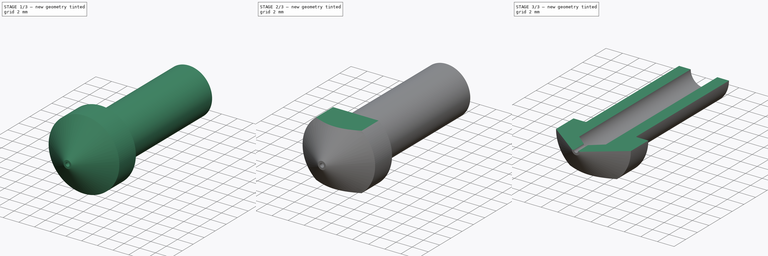
[diagram: build sequence overview — one tinted view per stage of 3, left to right]
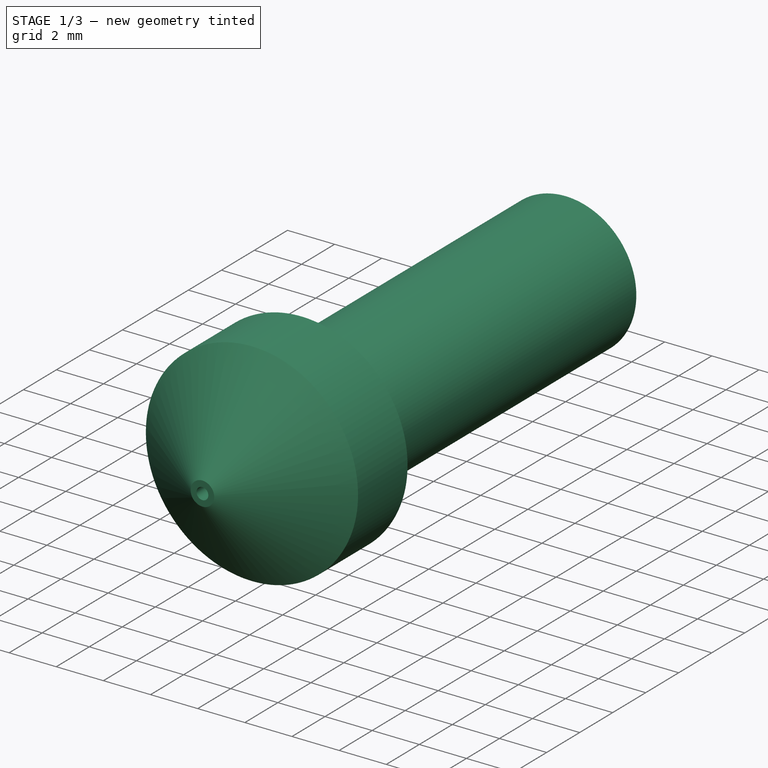
[diagram: stage 1 of 3 — iso view after this stage's code; geometry added in this stage tinted green]
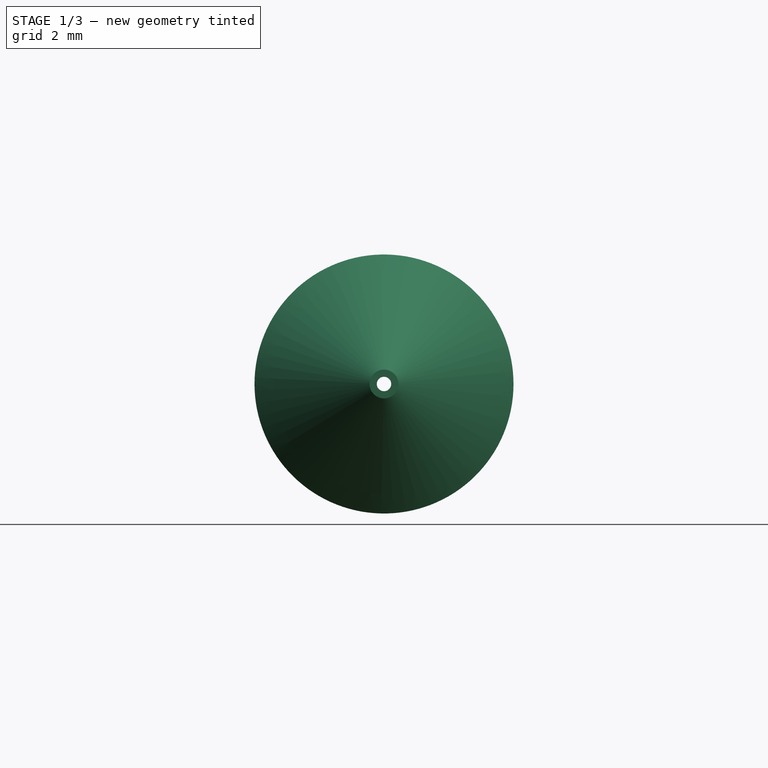
[diagram: stage 1 of 3 — front view after this stage's code; geometry added in this stage tinted green]
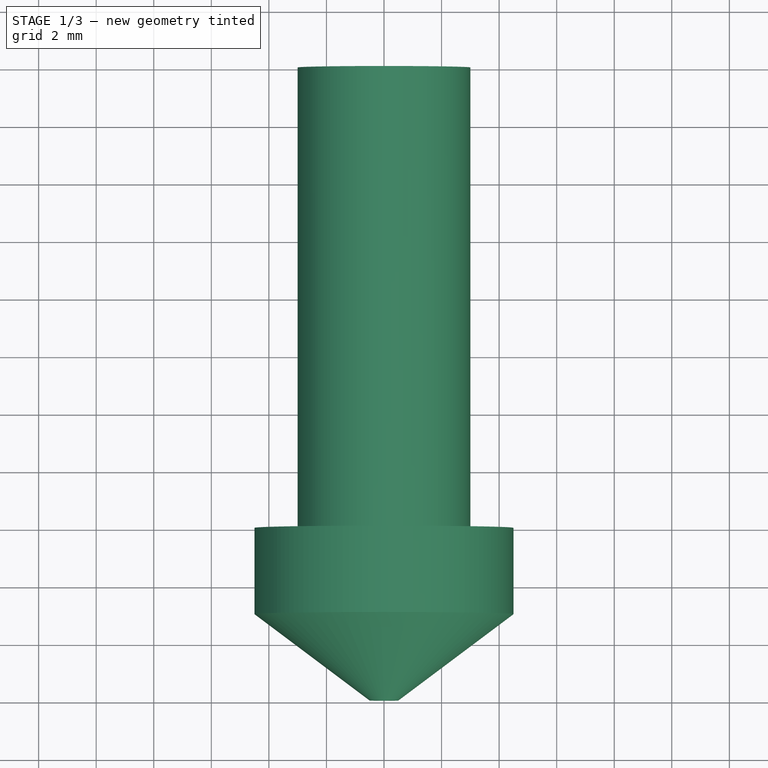
[diagram: stage 1 of 3 — top view after this stage's code; geometry added in this stage tinted green]
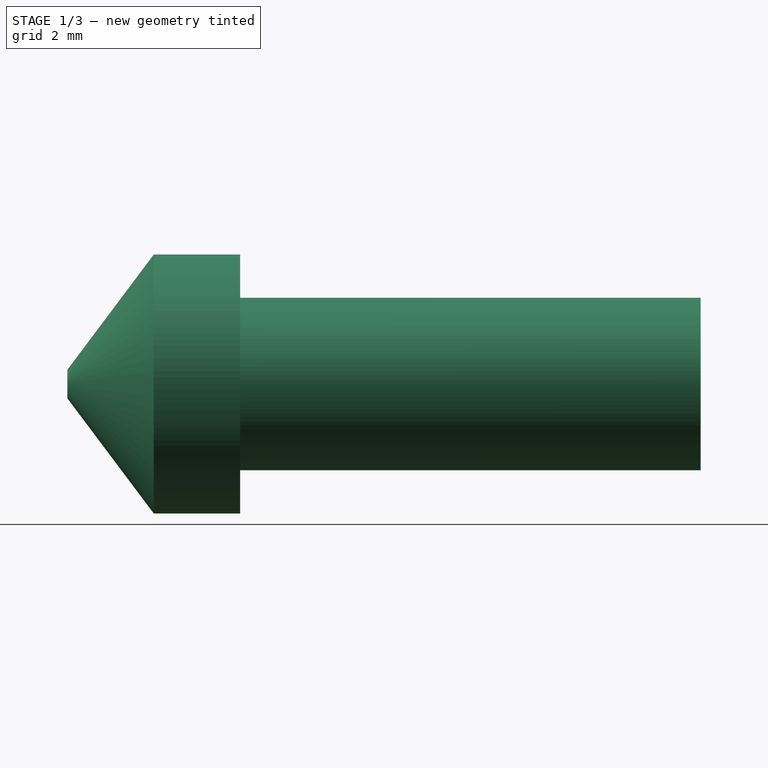
[diagram: stage 1 of 3 — right view after this stage's code; geometry added in this stage tinted green]
FCSTD DOCUMENT  (FreeCAD 0.15R4651 (Git))
Label: extended_hex_nozzle_0.1_drawing
License: All rights reserved
LicenseURL: http://en.wikipedia.org/wiki/All_rights_reserved
objects: Drawing::FeatureView×13, Sketcher::SketchObject×4, PartDesign::Pocket×3, Drawing::FeatureViewPart×3, PartDesign::Revolution×1, PartDesign::Fillet×1, Drawing::FeaturePage×1
note: 13 computed .brp shape members not serialized (recipe doc carries the construction recipe); baked Part::Feature solids carry a one-line shape summary decoded from their .brp

FEATURE [Sketcher::SketchObject] Sketch
  sketch-geometry (9):
    g0: LineSegment StartX=0 StartY=0 StartZ=0 EndX=0.5 EndY=0 EndZ=0
    g1: LineSegment StartX=0.5 StartY=0 StartZ=0 EndX=4.5 EndY=3 EndZ=0
    g2: LineSegment StartX=4.5 StartY=3 StartZ=0 EndX=4.5 EndY=6 EndZ=0
    g3: LineSegment StartX=4.5 StartY=6 StartZ=0 EndX=3 EndY=6 EndZ=0
    g4: LineSegment StartX=3 StartY=6 StartZ=0 EndX=3 EndY=22 EndZ=0
    g5: LineSegment StartX=3 StartY=22 StartZ=0 EndX=1.6 EndY=22 EndZ=0
    g6: LineSegment StartX=1.6 StartY=22 StartZ=0 EndX=1.6 EndY=2.84256 EndZ=0
    g7: LineSegment StartX=1.6 StartY=2.84256 StartZ=0 EndX=0 EndY=1.5 EndZ=0
    g8: LineSegment StartX=0 StartY=1.5 StartZ=0 EndX=0 EndY=0 EndZ=0
  constraints (26):
    c: Coincident(g-1,g0)
    c: PointOnObject(g0,g-1)
    c: Coincident(g0,g1)
    c: Coincident(g1,g2)
    c: Vertical(g2)
    c: Coincident(g2,g3)
    c: Horizontal(g3)
    c: Coincident(g3,g4)
    c: Vertical(g4)
    c: Coincident(g4,g5)
    c: Horizontal(g5)
    c: Coincident(g5,g6)
    c: Vertical(g6)
    c: Coincident(g6,g7)
    c: Coincident(g7,g8)
    c: Coincident(g8,g0)
    c: Vertical(g8)
    c: DistanceY(g0,g1) = 3
    c: DistanceY(g2,g1) = -3
    c: DistanceY(g-1,g4) = 22
    c: Angle(g0,g7) = 0.698132
    c: DistanceY(g-1,g7) = 1.5
    c: DistanceX(g0) = 0.5
    c: DistanceX(g-1,g1) = 4.5
    c: DistanceX(g-1,g4) = 3
    c: DistanceX(g-1,g5) = 1.6
FEATURE [PartDesign::Revolution] Revolution
  Angle = 360
  Axis = (0,1,0)
  Base = (0,0,0)
  ReferenceAxis = -> Sketch [V_Axis]
  Reversed = true
  Sketch = -> Sketch
FEATURE [Sketcher::SketchObject] Sketch001
  Placement = pos=(0,0,0) rot=(1,0,0;1.5708rad)
  Support = -> Revolution [Face1]
  sketch-geometry (1):
    g0: Circle CenterX=0 CenterY=0 CenterZ=0 NormalX=0 NormalY=0 NormalZ=1 Radius=0.25
  constraints (2):
    c: Coincident(g0,g-1)
    c: Radius(g0) = 0.25
FEATURE [PartDesign::Pocket] Pocket
  Length = 5
  Sketch = -> Sketch001
  Type = 0
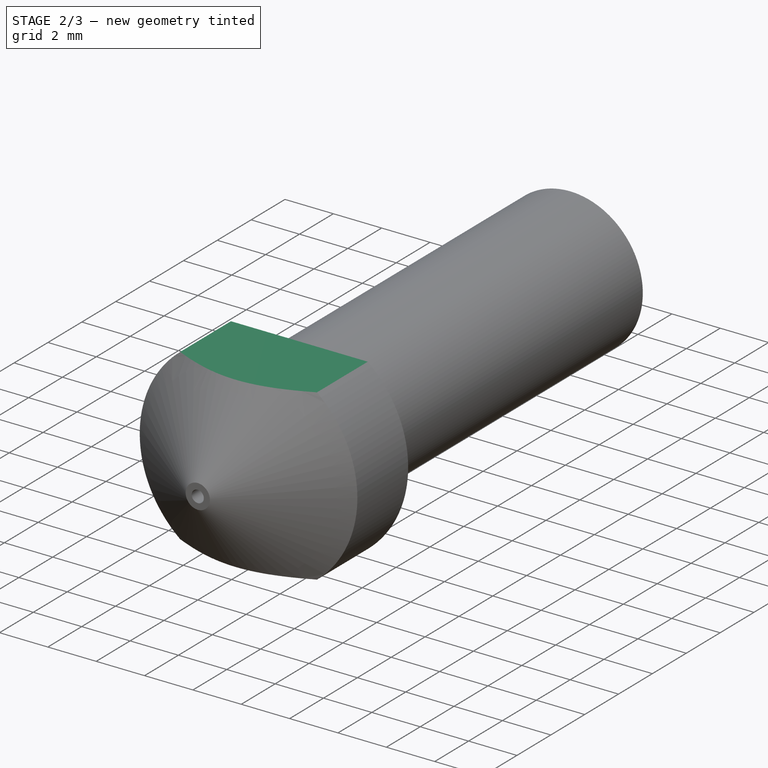
[diagram: stage 2 of 3 — iso view after this stage's code; geometry added in this stage tinted green]
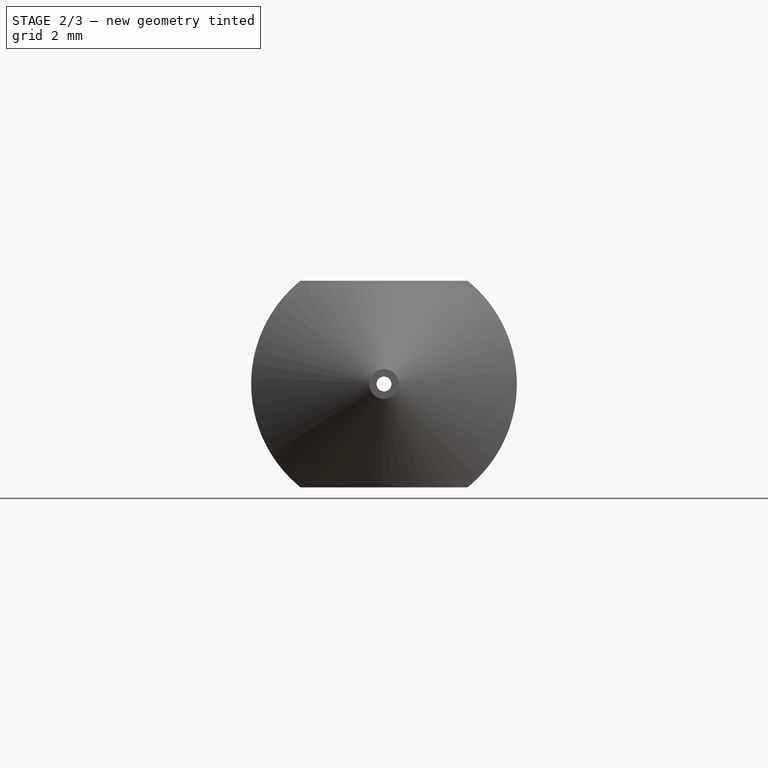
[diagram: stage 2 of 3 — front view after this stage's code; geometry added in this stage tinted green]
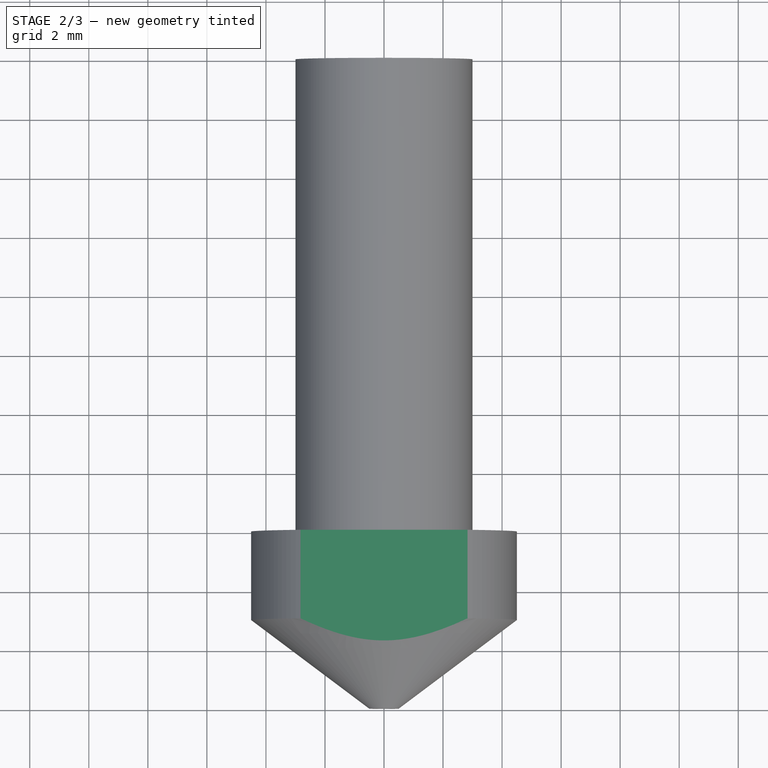
[diagram: stage 2 of 3 — top view after this stage's code; geometry added in this stage tinted green]
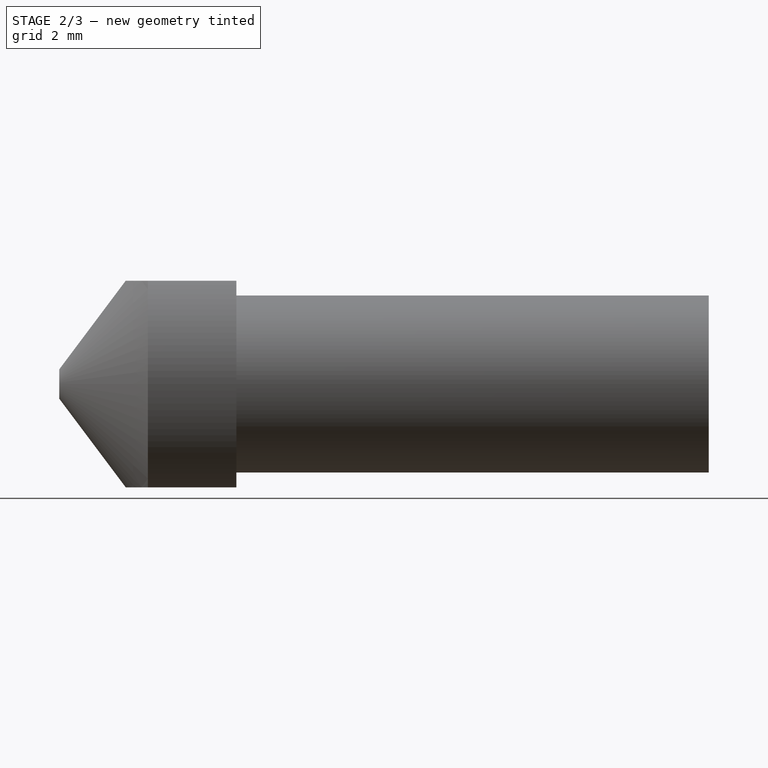
[diagram: stage 2 of 3 — right view after this stage's code; geometry added in this stage tinted green]
FEATURE [Sketcher::SketchObject] Sketch002
  Placement = pos=(0,0,0) rot=(1,0,0;1.5708rad)
  Support = -> Pocket [Face1]
  sketch-geometry (8):
    g0: LineSegment StartX=-5.41894 StartY=5.5961 StartZ=0 EndX=4.58106 EndY=5.5961 EndZ=0
    g1: LineSegment StartX=4.58106 StartY=5.5961 StartZ=0 EndX=4.58106 EndY=3.5 EndZ=0
    g2: LineSegment StartX=4.58106 StartY=3.5 StartZ=0 EndX=-5.41894 EndY=3.5 EndZ=0
    g3: LineSegment StartX=-5.41894 StartY=3.5 StartZ=0 EndX=-5.41894 EndY=5.5961 EndZ=0
    g4: LineSegment StartX=-5.45643 StartY=-5.80451 StartZ=0 EndX=4.54357 EndY=-5.80451 EndZ=0
    g5: LineSegment StartX=4.54357 StartY=-5.80451 StartZ=0 EndX=4.54357 EndY=-3.5 EndZ=0
    g6: LineSegment StartX=4.54357 StartY=-3.5 StartZ=0 EndX=-5.45643 EndY=-3.5 EndZ=0
    g7: LineSegment StartX=-5.45643 StartY=-3.5 StartZ=0 EndX=-5.45643 EndY=-5.80451 EndZ=0
  constraints (24):
    c: Coincident(g0,g1)
    c: Coincident(g1,g2)
    c: Coincident(g2,g3)
    c: Coincident(g3,g0)
    c: Horizontal(g0)
    c: Horizontal(g2)
    c: Vertical(g1)
    c: Vertical(g3)
    c: Coincident(g4,g5)
    c: Coincident(g5,g6)
    c: Coincident(g6,g7)
    c: Coincident(g7,g4)
    c: Horizontal(g4)
    c: Horizontal(g6)
    c: Vertical(g5)
    c: Vertical(g7)
    c: DistanceY(g6,g2) = 7
    c: DistanceY(g-1,g2) = 3.5
    c: DistanceX(g4) = 4.54357
    c: DistanceY(g4) = -5.80451
    c: DistanceX(g0) = -5.41894
    c: DistanceY(g0) = 5.5961
    c: Equal(g0,g4)
    c: DistanceX(g0) = 10
FEATURE [PartDesign::Pocket] Pocket001
  Length = 5
  Sketch = -> Sketch002
  Type = 1
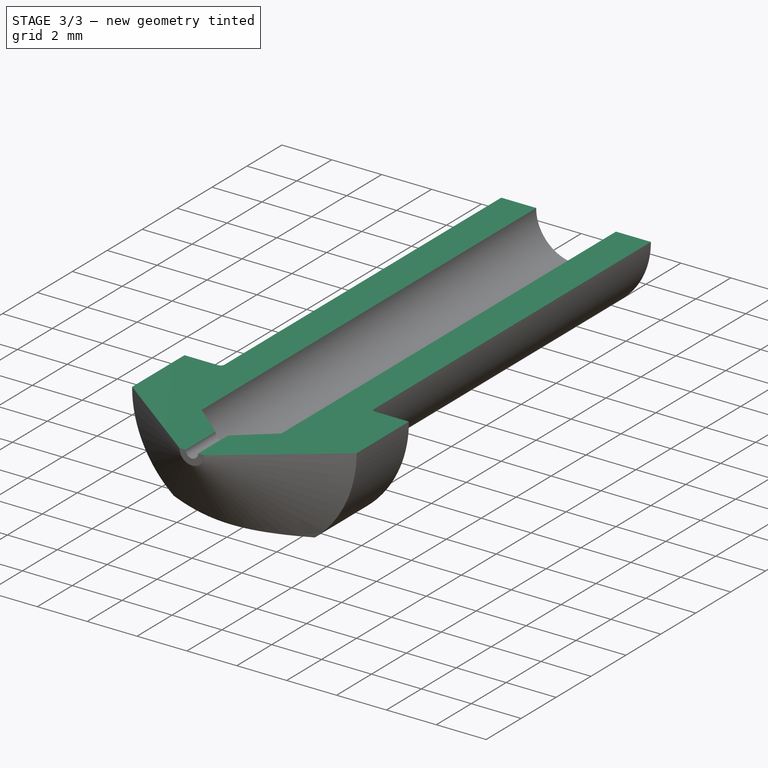
[diagram: stage 3 of 3 — iso view after this stage's code; geometry added in this stage tinted green]
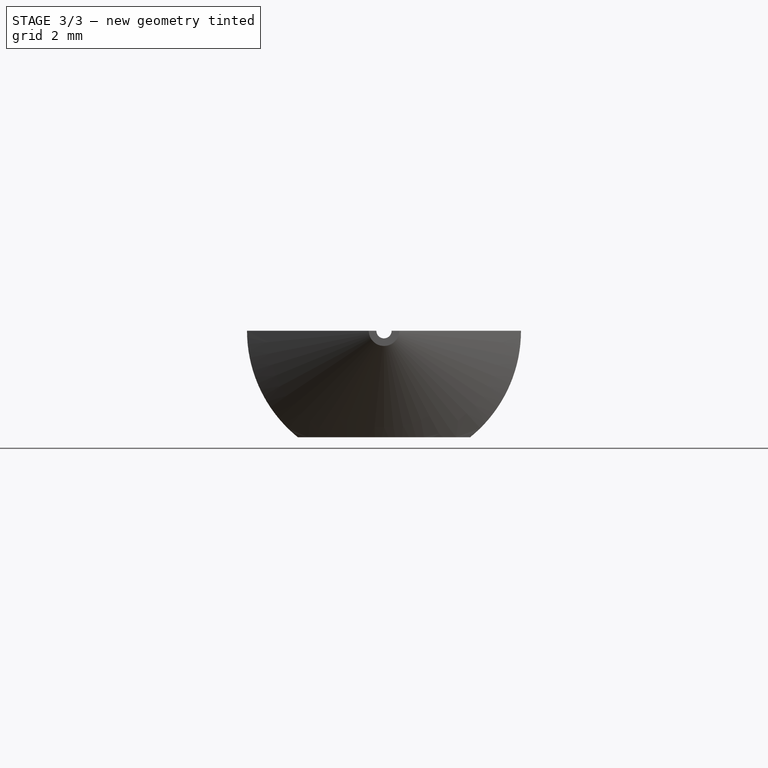
[diagram: stage 3 of 3 — front view after this stage's code; geometry added in this stage tinted green]
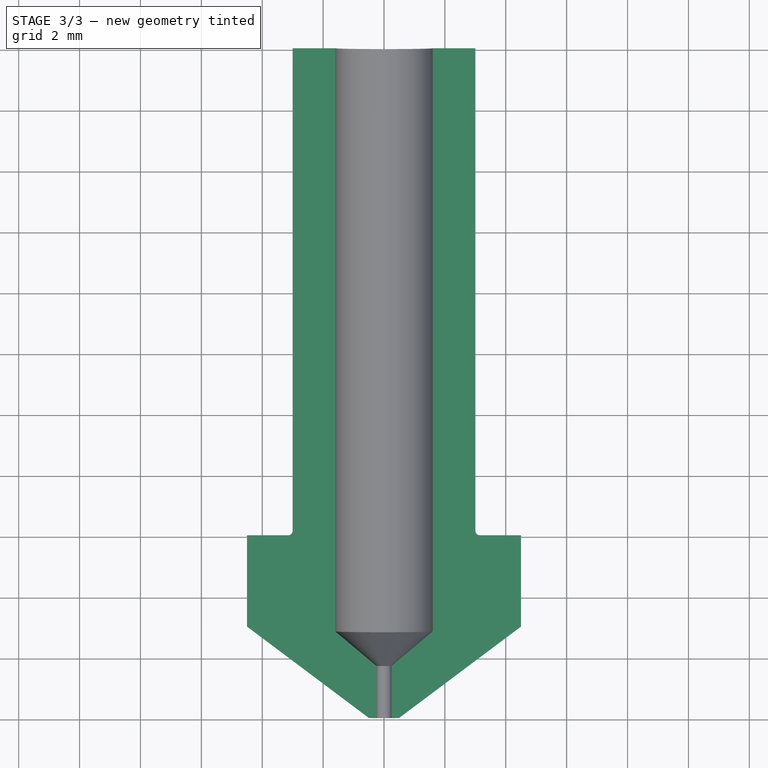
[diagram: stage 3 of 3 — top view after this stage's code; geometry added in this stage tinted green]
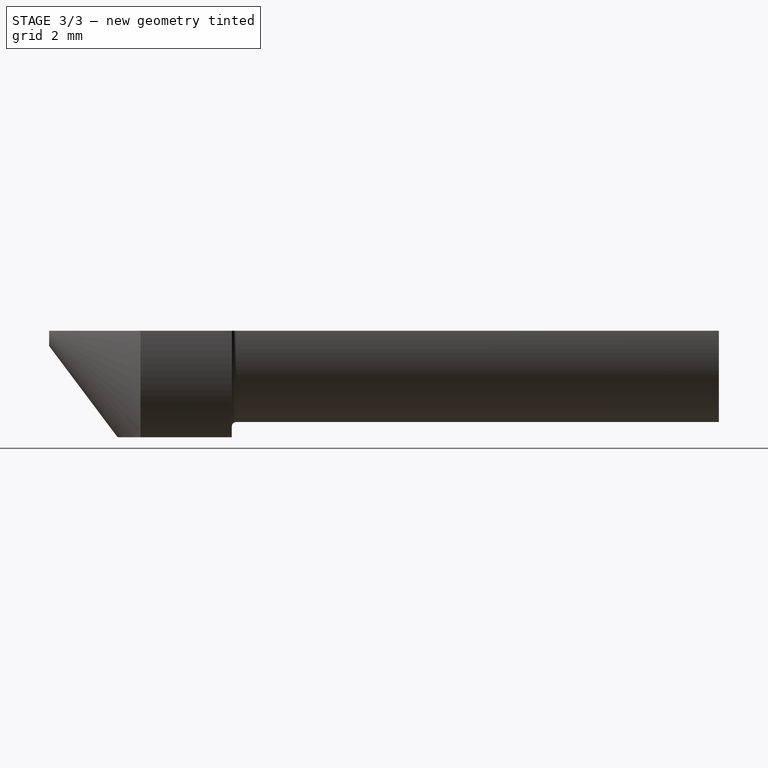
[diagram: stage 3 of 3 — right view after this stage's code; geometry added in this stage tinted green]
FEATURE [PartDesign::Fillet] Fillet
  Base = -> Pocket001 [Edge23]
  Radius = 0.15
FEATURE [Drawing::FeatureViewPart] Ortho  label="Ortho_0_0"
  Direction = (0,0,1)
  HiddenWidth = 0.15
  LineWidth = 0.35
  Rotation = 0
  Scale = 4
  ShowHiddenLines = true
  ShowSmoothLines = true
  Source = -> Fillet
  Tolerance = 0.05
  ViewResult = <blob: 8125 chars omitted>
  Visible = true
  X = 100
  Y = 119
FEATURE [Drawing::FeatureViewPart] Ortho001  label="Ortho_0_-1"
  Direction = (0,-1,0)
  HiddenWidth = 0.15
  LineWidth = 0.35
  Rotation = 90
  Scale = 4
  ShowHiddenLines = true
  ShowSmoothLines = true
  Source = -> Fillet
  Tolerance = 0.05
  ViewResult = <g id="Ortho_0_-1"\n   transform="rotate(90,100,150) translate(100,150) scale(4,4)"\n  >\n<g   stroke="rgb(0, 0, 0)"\n   stroke-width="0.0375"\n   stroke-linecap="butt"\n   stroke-linejoin="miter"\n   stroke-dasharray="0.2,0.1"\n   fill="none"\n   transform="scale(1,-1)"\n  >\n<path d="M3.5 2.82843 A4.5 4.5 0 0 1 1.10218e-15 4.5" /><path id= "2" d=" M 3.5 2.82843 L 3.5 -2.82843 " />\n<path d="M-3.5 -2.82843 A4.5 4.5 0 0 1 3.5 -2.82843" /><path id= "4" d=" M -3.5 2.82843 L -3.5 -2.82843 " />\n<path d="M0 4.5 A4.5 4.5 0 0 1 -3.5 2.82843" /><circle cx ="0" cy ="0" r ="3" /><circle cx ="0" cy ="0" r ="3" /><circle cx ="0" cy ="0" r ="1.6" /><circle cx ="0" cy ="0" r ="1.6" /><circle cx ="4.65794e-17" cy ="0" r ="0.25" /></g>\n<g   stroke="rgb(0, 0, 0)"\n   stroke-width="0.0875"\n   stroke-linecap="butt"\n   stroke-linejoin="miter"\n   fill="none"\n   transform="scale(1,-1)"\n  >\n<path d="M3.5 2.82843 A4.5 4.5 0 0 1 1.10218e-15 4.5" /><path d="M3.5,2.82843 L3.5,2.36825  L3.5,1.93449  L3.5,1.52232  L3.5,1.12712  L3.5,0.744501  L3.5,0.370186  L3.5,-4.85723e-16  L3.5,-0.370186  L3.5,-0.744501  L3.5,-1.12712  L3.5,-1.52232  L3.5,-1.93449  L3.5,-2.36825  L3.5,-2.82843 " /><path d="M-3.5 -2.82843 A4.5 4.5 0 0 1 3.5 -2.82843" /><path d="M-3.5,2.82843 L-3.5,2.36825  L-3.5,1.93449  L-3.5,1.52232  L-3.5,1.12712  L-3.5,0.744501  L-3.5,0.370186  L-3.5,9.71445e-17  L-3.5,-0.370186  L-3.5,-0.744501  L-3.5,-1.12712  L-3.5,-1.52232  L-3.5,-1.93449  L-3.5,-2.36825  L-3.5,-2.82843 " /><path d="M0 4.5 A4.5 4.5 0 0 1 -3.5 2.82843" /><circle cx ="0" cy ="0" r ="0.5" /><circle cx ="0" cy ="0" r ="0.25" /></g>\n<g   stroke="rgb(0, 0, 0)"\n   stroke-width="0.0375"\n   stroke-linecap="butt"\n   stroke-linejoin="miter"\n   stroke-dasharray="0.09,0.05"\n   fill="none"\n   transform="scale(1,-1)"\n  >\n<circle cx ="0" cy ="0" r ="3.15" /></g>\n</g>
  Visible = true
  X = 100
  Y = 150
FEATURE [Drawing::FeatureView] dim001
  Rotation = 0
  ViewResult = <g   >\n <circle cx ="112.600000" cy ="94.400000" r="0.500000" stroke="none" fill="rgb(0,0,255)" /> \n<line x1="125.411834" y1="83.116656" x2="112.600000" y2="94.400000" style="stroke:rgb(0,0,255);stroke-width:0.30" />\n<polygon points="113.050272,94.003446 115.962557,92.771133 116.052089,91.359756 114.640712,91.270224" style="fill:rgb(0,0,255);stroke:rgb(0,0,255);stroke-width:0" />\n<line x1="125.411834" y1="83.116656" x2="137.938280" y2="83.116656" style="stroke:rgb(0,0,255);stroke-width:0.30" />\n<text x="126.738163" y="81.642956" font-family="Verdana" font-size="3.6" fill="rgb(255,0,0)" text-anchor="inherit"  >R0.15</text>\n<!--0.6-->\n<!--R%3.3f-->\n</g> 
  Visible = true
  X = 0
  Y = 0
FEATURE [Drawing::FeatureView] dim003
  Rotation = 0
  ViewResult = <g   >\n<line x1="86.686280" y1="136.000000" x2="74.158678" y2="136.000000" style="stroke:rgb(0,0,255);stroke-width:0.30" />\n<line x1="86.686280" y1="164.000000" x2="74.158678" y2="164.000000" style="stroke:rgb(0,0,255);stroke-width:0.30" />\n<line x1="75.158678" y1="136.000000" x2="75.158678" y2="164.000000" style="stroke:rgb(0,0,255);stroke-width:0.30" />\n<polygon points="75.158678,136.000000 74.158678,139.000000 75.158678,140.000000 76.158678,139.000000" style="fill:rgb(0,0,255);stroke:rgb(0,0,255);stroke-width:0" /><polygon points="75.158678,164.000000 76.158678,161.000000 75.158678,160.000000 74.158678,161.000000" style="fill:rgb(0,0,255);stroke:rgb(0,0,255);stroke-width:0" />\n<text x="72.859707" y="151.908952" font-family="Verdana" font-size="3.6" fill="rgb(255,0,0)" text-anchor="inherit" transform="rotate(-90.000000 72.859707,151.908952)" >7</text>\n</g> 
  Visible = true
  X = 0
  Y = 0
FEATURE [Drawing::FeatureView] dim004
  Rotation = 0
  ViewResult = <g   >\n <circle cx ="99.999988" cy ="150.000000" r="0.500000" stroke="none" fill="rgb(0,0,255)" /> \n<line x1="119.900197" y1="166.233312" x2="99.999988" y2="150.000000" style="stroke:rgb(0,0,255);stroke-width:0.30" />\n<polygon points="113.947926,161.377831 112.255371,158.706641 110.848384,158.849424 110.991168,160.256411" style="fill:rgb(0,0,255);stroke:rgb(0,0,255);stroke-width:0" />\n<line x1="119.900197" y1="166.233312" x2="129.096083" y2="166.233312" style="stroke:rgb(0,0,255);stroke-width:0.30" />\n<text x="120.430729" y="165.172248" font-family="Verdana" font-size="3.6" fill="rgb(255,0,0)" text-anchor="inherit"  >R4.5</text>\n<!--18.0-->\n<!--R%3.3f-->\n</g> 
  Visible = true
  X = 0
  Y = 0
FEATURE [Drawing::FeatureView] dim005
  Rotation = 0
  ViewResult = <g   >\n<line x1="86.300880" y1="31.000000" x2="77.619186" y2="31.000000" style="stroke:rgb(0,0,255);stroke-width:0.30" />\n<line x1="83.524920" y1="95.000000" x2="77.619186" y2="95.000000" style="stroke:rgb(0,0,255);stroke-width:0.30" />\n<line x1="78.619186" y1="31.000000" x2="78.619186" y2="95.000000" style="stroke:rgb(0,0,255);stroke-width:0.30" />\n<polygon points="78.619186,31.000000 77.619186,34.000000 78.619186,35.000000 79.619186,34.000000" style="fill:rgb(0,0,255);stroke:rgb(0,0,255);stroke-width:0" /><polygon points="78.619186,95.000000 79.619186,92.000000 78.619186,91.000000 77.619186,92.000000" style="fill:rgb(0,0,255);stroke:rgb(0,0,255);stroke-width:0" />\n<text x="77.166265" y="68.448737" font-family="Verdana" font-size="3.6" fill="rgb(255,0,0)" text-anchor="inherit" transform="rotate(-90.000000 77.166265,68.448737)" >16</text>\n</g> 
  Visible = true
  X = 0
  Y = 0
FEATURE [Drawing::FeatureView] dim006
  Rotation = 0
  ViewResult = <g   >\n<line x1="80.000000" y1="107.000000" x2="77.619186" y2="107.000000" style="stroke:rgb(0,0,255);stroke-width:0.30" />\n<line x1="80.000000" y1="95.000000" x2="77.619186" y2="95.000000" style="stroke:rgb(0,0,255);stroke-width:0.30" />\n<line x1="78.619186" y1="107.000000" x2="78.619186" y2="95.000000" style="stroke:rgb(0,0,255);stroke-width:0.30" />\n<polygon points="78.619186,107.000000 79.619186,104.000000 78.619186,103.000000 77.619186,104.000000" style="fill:rgb(0,0,255);stroke:rgb(0,0,255);stroke-width:0" /><polygon points="78.619186,95.000000 77.619186,98.000000 78.619186,99.000000 79.619186,98.000000" style="fill:rgb(0,0,255);stroke:rgb(0,0,255);stroke-width:0" />\n<text x="77.812007" y="102.511669" font-family="Verdana" font-size="3.6" fill="rgb(255,0,0)" text-anchor="inherit" transform="rotate(-90.000000 77.812007,102.511669)" >3</text>\n</g> 
  Visible = true
  X = 0
  Y = 0
FEATURE [Drawing::FeatureView] dim007
  Rotation = 0
  ViewResult = <g   >\n<line x1="88.618040" y1="31.000000" x2="69.385965" y2="31.000000" style="stroke:rgb(0,0,255);stroke-width:0.30" />\n<line x1="97.000000" y1="119.000000" x2="69.385965" y2="119.000000" style="stroke:rgb(0,0,255);stroke-width:0.30" />\n<line x1="70.385965" y1="31.000000" x2="70.385965" y2="119.000000" style="stroke:rgb(0,0,255);stroke-width:0.30" />\n<polygon points="70.385965,31.000000 69.385965,34.000000 70.385965,35.000000 71.385965,34.000000" style="fill:rgb(0,0,255);stroke:rgb(0,0,255);stroke-width:0" /><polygon points="70.385965,119.000000 71.385965,116.000000 70.385965,115.000000 69.385965,116.000000" style="fill:rgb(0,0,255);stroke:rgb(0,0,255);stroke-width:0" />\n<text x="69.255915" y="82.816514" font-family="Verdana" font-size="3.6" fill="rgb(255,0,0)" text-anchor="inherit" transform="rotate(-90.000000 69.255915,82.816514)" >22</text>\n</g> 
  Visible = true
  X = 0
  Y = 0
FEATURE [Drawing::FeatureView] dimLine001
  Rotation = 0
  ViewResult = <g   >\n<line x1="121.076775" y1="54.888138" x2="112.000000" y2="62.700000" style="stroke:rgb(0,0,255);stroke-width:0.30" />\n<polygon points="112.000000,62.700000 114.926152,61.500986 115.031777,60.090723 113.621513,59.985098" style="fill:rgb(0,0,255);stroke:rgb(0,0,255);stroke-width:0" />\n<line x1="121.076775" y1="54.888138" x2="130.601481" y2="54.888138" style="stroke:rgb(0,0,255);stroke-width:0.30" />\n</g> 
  Visible = true
  X = 0
  Y = 0
FEATURE [Drawing::FeatureView] dimText001
  Rotation = 0
  ViewResult = <g   >\n<text x="124.144053" y="53.758088" font-family="Verdana" font-size="3.6" fill="rgb(255,0,0)" text-anchor="inherit"  >M6</text>\n</g> 
  Visible = true
  X = 0
  Y = 0
FEATURE [Sketcher::SketchObject] Sketch003
  Placement = pos=(0,22,0) rot=(0,0.707107,0.707107;3.14159rad)
  Support = -> Fillet [Face10]
  sketch-geometry (4):
    g0: LineSegment StartX=-10.3965 StartY=0 StartZ=0 EndX=8.66765 EndY=0 EndZ=0
    g1: LineSegment StartX=8.66765 StartY=0 StartZ=0 EndX=8.66765 EndY=4.78019 EndZ=0
    g2: LineSegment StartX=8.66765 StartY=4.78019 StartZ=0 EndX=-10.3965 EndY=4.78019 EndZ=0
    g3: LineSegment StartX=-10.3965 StartY=4.78019 StartZ=0 EndX=-10.3965 EndY=0 EndZ=0
  constraints (12):
    c: Coincident(g0,g1)
    c: Coincident(g1,g2)
    c: Coincident(g2,g3)
    c: Coincident(g3,g0)
    c: Horizontal(g0)
    c: Horizontal(g2)
    c: Vertical(g1)
    c: Vertical(g3)
    c: PointOnObject(g0,g-1)
    c: DistanceX(g2) = -10.3965
    c: DistanceY(g2) = 4.78019
    c: DistanceX(g2) = -19.0642
FEATURE [PartDesign::Pocket] Pocket002
  Length = 5
  Sketch = -> Sketch003
  Type = 1
FEATURE [Drawing::FeatureViewPart] View
  Direction = (0,0,1)
  HiddenWidth = 0.15
  LineWidth = 0.35
  Rotation = 0
  Scale = 4
  ShowHiddenLines = false
  ShowSmoothLines = false
  Source = -> Pocket002
  Tolerance = 0.05
  ViewResult = <blob: 2935 chars omitted>
  Visible = true
  X = 200
  Y = 120
FEATURE [Drawing::FeatureView] dim008
  Rotation = 0
  ViewResult = <g   >\n <line x1="199.000000" y1="122.000000" x2="199.000000" y2="128.752069" style="stroke:rgb(0,0,255);stroke-width:0.300000" />\n<line x1="201.000000" y1="122.000000" x2="201.000000" y2="128.752069" style="stroke:rgb(0,0,255);stroke-width:0.300000" />\n<line x1="199.000000" y1="127.752069" x2="201.000000" y2="127.752069" style="stroke:rgb(0,0,255);stroke-width:0.300000" />\n<polygon points="199.000000,127.752069 196.000000,126.752069 195.000000,127.752069 196.000000,128.752069" style="fill:rgb(0,0,255);stroke:rgb(0,0,255);stroke-width:0" />\n<polygon points="201.000000,127.752069 204.000000,128.752069 205.000000,127.752069 204.000000,126.752069" style="fill:rgb(0,0,255);stroke:rgb(0,0,255);stroke-width:0" />\n<text x="204.958765" y="131.537808" font-family="Verdana" font-size="3.6" fill="rgb(255,0,0)" text-anchor="inherit" transform="rotate(360.000000 204.958765,131.537808)" >0.5</text>\n</g> 
  Visible = true
  X = 0
  Y = 0
FEATURE [Drawing::FeatureView] dim002
  Rotation = 0
  ViewResult = <g   >\n<line x1="203.000000" y1="120.000000" x2="221.102603" y2="120.000000" style="stroke:rgb(0,0,255);stroke-width:0.30" />\n<line x1="203.000000" y1="113.160920" x2="221.102603" y2="113.160920" style="stroke:rgb(0,0,255);stroke-width:0.30" />\n<line x1="220.102603" y1="120.000000" x2="220.102603" y2="113.160920" style="stroke:rgb(0,0,255);stroke-width:0.30" />\n<polygon points="220.102603,120.000000 219.102603,123.000000 220.102603,124.000000 221.102603,123.000000" style="fill:rgb(0,0,255);stroke:rgb(0,0,255);stroke-width:0" /><polygon points="220.102603,113.160920 221.102603,110.160920 220.102603,109.160920 219.102603,110.160920" style="fill:rgb(0,0,255);stroke:rgb(0,0,255);stroke-width:0" />\n<text x="224.664682" y="120.538656" font-family="Verdana" font-size="3.6" fill="rgb(255,0,0)" text-anchor="inherit" transform="rotate(-90.000000 224.664682,120.538656)" >1.5</text>\n</g> 
  Visible = true
  X = 0
  Y = 0
FEATURE [Drawing::FeatureView] dim009
  Rotation = 0
  ViewResult = <g   >\n <line x1="196.000000" y1="120.000000" x2="165.964383" y2="120.000000" style="stroke:rgb(0,0,255);stroke-width:0.300000" />\n<line x1="192.067914" y1="107.344181" x2="175.600157" y2="93.526025" style="stroke:rgb(0,0,255);stroke-width:0.300000" />\n<path d = "M 166.964383 120.000000 A 40.186076 40.186076 0 0 1 176.366200 94.168815" style="stroke:rgb(0,0,255);stroke-width:0.30;fill:none" />\n<polygon points="166.964383,120.000000 167.964383,117.000000 166.964383,116.000000 165.964383,117.000000" style="fill:rgb(0,0,255);stroke:rgb(0,0,255);stroke-width:0" />\n<polygon points="176.366200,94.168815 173.671789,95.824154 173.795042,97.232986 175.203875,97.109733" style="fill:rgb(0,0,255);stroke:rgb(0,0,255);stroke-width:0" />\n<text x="158.586285" y="109.149716" font-family="Verdana" font-size="3.6" fill="rgb(255,0,0)" text-anchor="-2.92178108986"  >40.0°</text>\n <!--40.0001369284-->\n <!--%3.1f°-->\n</g> 
  Visible = true
  X = 0
  Y = 0
FEATURE [Drawing::FeatureView] dim010
  Rotation = 0
  ViewResult = <g   >\n<line x1="202.000000" y1="122.000000" x2="202.000000" y2="125.042803" style="stroke:rgb(0,0,255);stroke-width:0.30" />\n<line x1="198.000000" y1="122.000000" x2="198.000000" y2="125.042803" style="stroke:rgb(0,0,255);stroke-width:0.30" />\n<line x1="202.000000" y1="124.042803" x2="198.000000" y2="124.042803" style="stroke:rgb(0,0,255);stroke-width:0.30" />\n<polygon points="202.000000,124.042803 205.000000,125.042803 206.000000,124.042803 205.000000,123.042803" style="fill:rgb(0,0,255);stroke:rgb(0,0,255);stroke-width:0" /><polygon points="198.000000,124.042803 195.000000,123.042803 194.000000,124.042803 195.000000,125.042803" style="fill:rgb(0,0,255);stroke:rgb(0,0,255);stroke-width:0" />\n<text x="207.327511" y="124.783112" font-family="Verdana" font-size="3.6" fill="rgb(255,0,0)" text-anchor="inherit" transform="rotate(0.000000 207.327511,124.783112)" >1</text>\n</g> 
  Visible = true
  X = 0
  Y = 0
FEATURE [Drawing::FeatureView] dim011
  Rotation = 0
  ViewResult = <g   >\n <line x1="193.600000" y1="30.000000" x2="193.600000" y2="23.990246" style="stroke:rgb(0,0,255);stroke-width:0.300000" />\n<line x1="206.400000" y1="30.000000" x2="206.400000" y2="23.990246" style="stroke:rgb(0,0,255);stroke-width:0.300000" />\n<line x1="193.600000" y1="24.990246" x2="206.400000" y2="24.990246" style="stroke:rgb(0,0,255);stroke-width:0.300000" />\n<polygon points="193.600000,24.990246 196.600000,25.990246 197.600000,24.990246 196.600000,23.990246" style="fill:rgb(0,0,255);stroke:rgb(0,0,255);stroke-width:0" />\n<polygon points="206.400000,24.990246 203.400000,23.990246 202.400000,24.990246 203.400000,25.990246" style="fill:rgb(0,0,255);stroke:rgb(0,0,255);stroke-width:0" />\n<text x="208.639499" y="25.765138" font-family="Verdana" font-size="3.6" fill="rgb(255,0,0)" text-anchor="inherit" transform="rotate(360.000000 208.639499,25.765138)" >3.2</text>\n</g> 
  Visible = true
  X = 0
  Y = 0
FEATURE [Drawing::FeaturePage] Page
  EditableTexts = Designed by Name | Date | Scale | Weight | Title | Subtitle | Drawing number | Sheet
  Group = -> [Ortho,Ortho001,dim001,dim003,dim004,dim005,dim006,dim007,dimLine001,dimText001,View,dim008,dim002,dim009,dim010,dim011]
  Template = <path>
note: 1 file-system path scrubbed to <path> (originals preserved in the JSON sidecar)
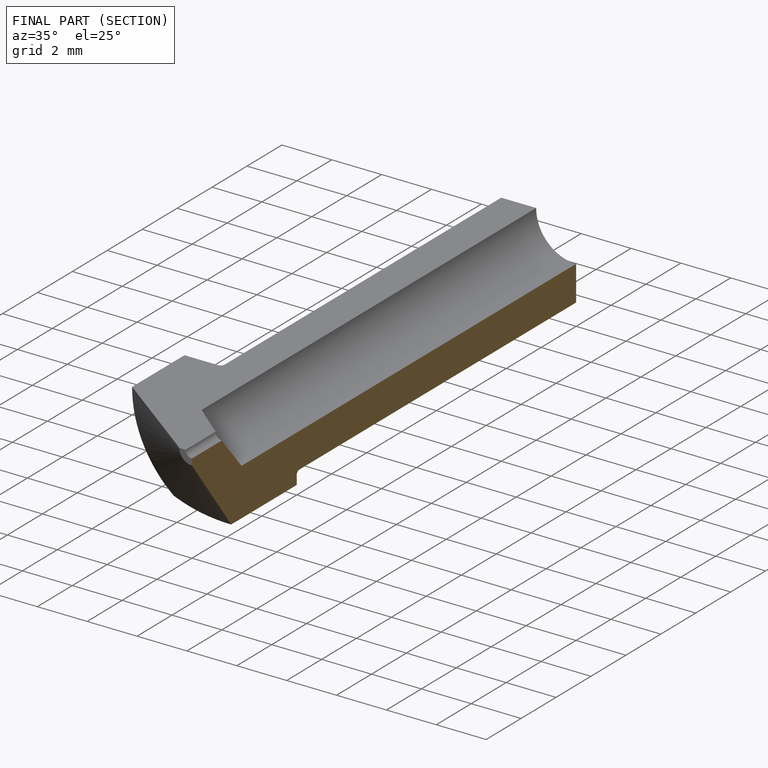
[diagram: finished part — half-section view (interior)]
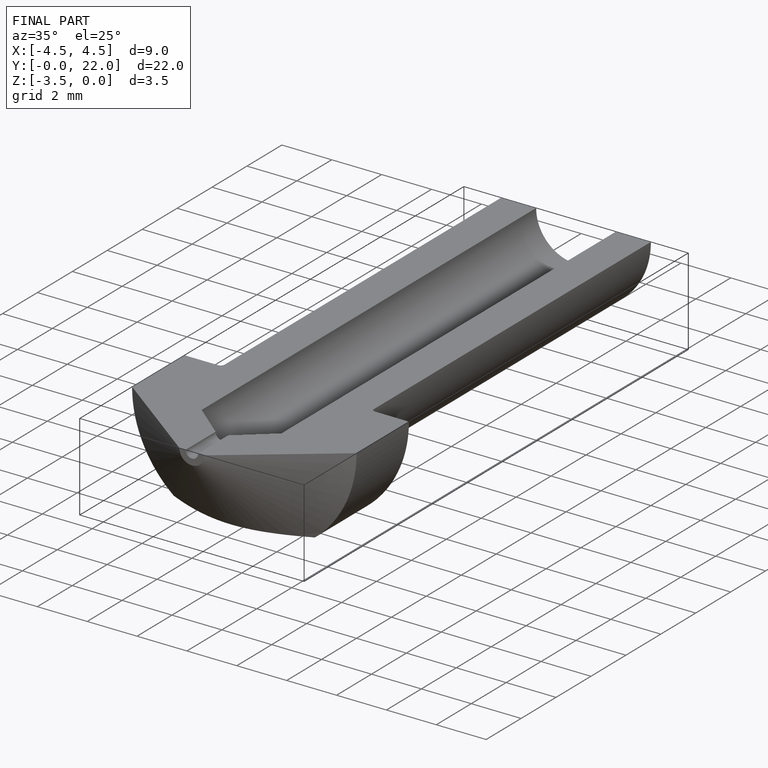
[diagram: finished part — iso view with bounding-box wireframe]
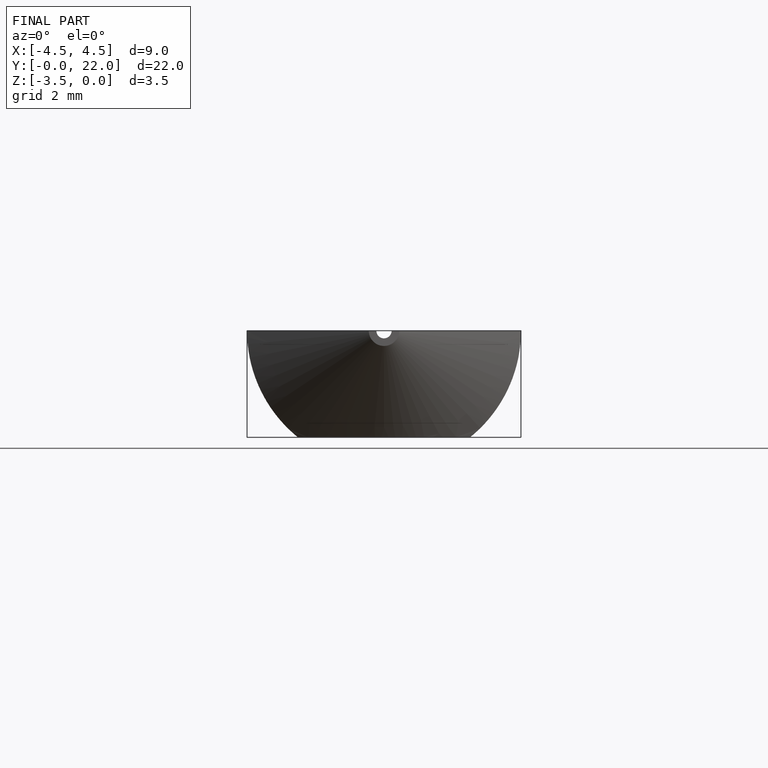
[diagram: finished part — front view with bounding-box wireframe]
